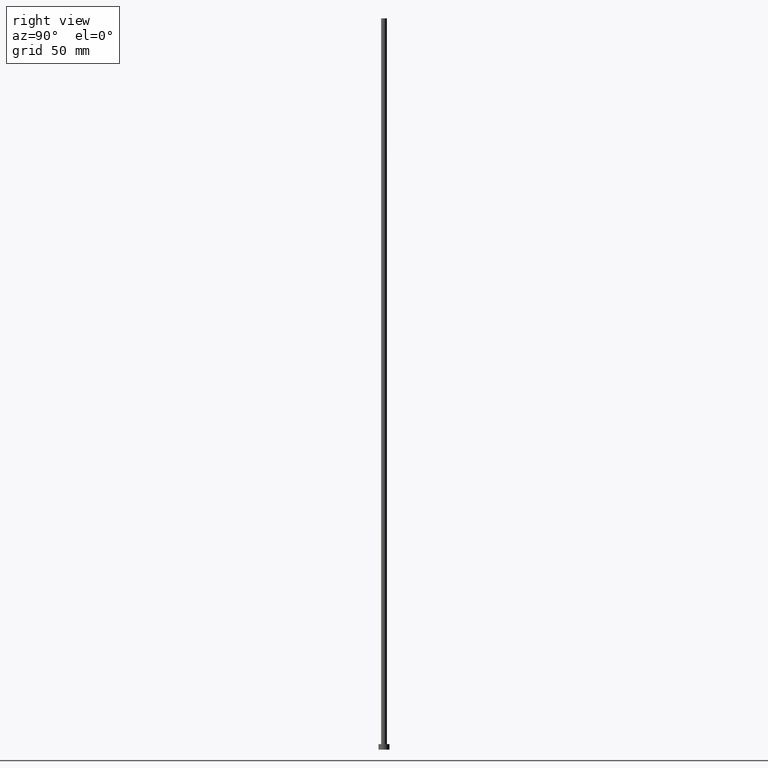
[diagram: clean part render]
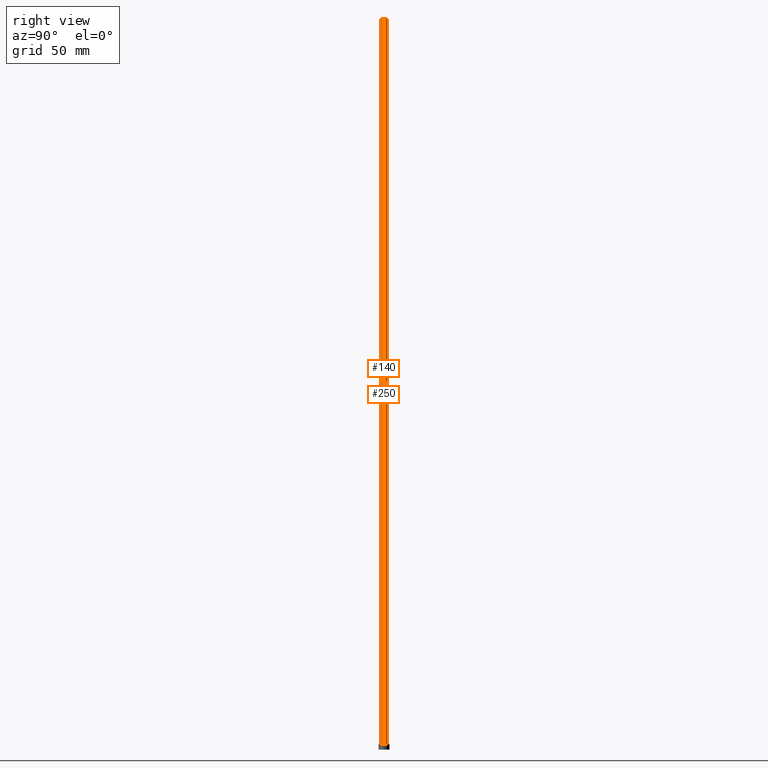
[diagram: same view with one multi-face feature highlighted, each face labeled with its STEP entity id]
A machine part, right view. The highlighted faces form ONE feature: a constant-radius fillet chain: 2 tangent blend faces with common blend radius 1.6 mm. The faces share edges in the B-rep.
Their STEP definitions:
[1] entity #250 (Cylinder):
#10 = EDGE_CURVE ( 'NONE', #119, #154, #201, .T. ) ;
#11 = EDGE_LOOP ( 'NONE', ( #132, #174, #151, #172 ) ) ;
#17 = DIRECTION ( 'NONE',  ( -0.000000000000000000, -0.000000000000000000, -1.000000000000000000 ) ) ;
#21 = CARTESIAN_POINT ( 'NONE',  ( -1.600000000000000089, 0.000000000000000000, 400.0000000000000000 ) ) ;
#33 = CARTESIAN_POINT ( 'NONE',  ( -1.600000000000000089, 0.000000000000000000, 400.0000000000000000 ) ) ;
#40 = CARTESIAN_POINT ( 'NONE',  ( 1.600000000000000089, 1.959434878635765230E-16, 400.0000000000000000 ) ) ;
#45 = DIRECTION ( 'NONE',  ( 1.000000000000000000, 0.000000000000000000, 0.000000000000000000 ) ) ;
#55 = EDGE_CURVE ( 'NONE', #240, #154, #228, .T. ) ;
#66 = EDGE_CURVE ( 'NONE', #193, #240, #224, .T. ) ;
#68 = AXIS2_PLACEMENT_3D ( 'NONE', #249, #186, #73 ) ;
#73 = DIRECTION ( 'NONE',  ( -1.000000000000000000, 0.000000000000000000, 0.000000000000000000 ) ) ;
#88 = CYLINDRICAL_SURFACE ( 'NONE', #68, 1.600000000000000089 ) ;
#90 = VECTOR ( 'NONE', #17, 1000.000000000000000 ) ;
#103 = AXIS2_PLACEMENT_3D ( 'NONE', #183, #107, #45 ) ;
#107 = DIRECTION ( 'NONE',  ( 0.000000000000000000, 0.000000000000000000, 1.000000000000000000 ) ) ;
#119 = VERTEX_POINT ( 'NONE', #21 ) ;
#121 = DIRECTION ( 'NONE',  ( 1.000000000000000000, 0.000000000000000000, 0.000000000000000000 ) ) ;
#132 = ORIENTED_EDGE ( 'NONE', *, *, #212, .F. ) ;
#138 = CARTESIAN_POINT ( 'NONE',  ( 0.000000000000000000, 0.000000000000000000, 3.000000000000000000 ) ) ;
#151 = ORIENTED_EDGE ( 'NONE', *, *, #55, .T. ) ;
#154 = VERTEX_POINT ( 'NONE', #170 ) ;
#170 = CARTESIAN_POINT ( 'NONE',  ( -1.600000000000000089, 0.000000000000000000, 3.000000000000000000 ) ) ;
#172 = ORIENTED_EDGE ( 'NONE', *, *, #10, .F. ) ;
#174 = ORIENTED_EDGE ( 'NONE', *, *, #66, .T. ) ;
#178 = VECTOR ( 'NONE', #244, 1000.000000000000000 ) ;
#183 = CARTESIAN_POINT ( 'NONE',  ( 0.000000000000000000, 0.000000000000000000, 400.0000000000000000 ) ) ;
#186 = DIRECTION ( 'NONE',  ( -0.000000000000000000, -0.000000000000000000, -1.000000000000000000 ) ) ;
#193 = VERTEX_POINT ( 'NONE', #40 ) ;
#201 = LINE ( 'NONE', #33, #178 ) ;
#202 = CARTESIAN_POINT ( 'NONE',  ( 1.600000000000000089, 1.959434878635765230E-16, 400.0000000000000000 ) ) ;
#203 = CIRCLE ( 'NONE', #103, 1.600000000000000089 ) ;
#211 = CARTESIAN_POINT ( 'NONE',  ( 1.600000000000000089, 1.959434878635765230E-16, 3.000000000000000000 ) ) ;
#212 = EDGE_CURVE ( 'NONE', #193, #119, #203, .T. ) ;
#224 = LINE ( 'NONE', #202, #90 ) ;
#227 = DIRECTION ( 'NONE',  ( 0.000000000000000000, 0.000000000000000000, 1.000000000000000000 ) ) ;
#228 = CIRCLE ( 'NONE', #255, 1.600000000000000089 ) ;
#240 = VERTEX_POINT ( 'NONE', #211 ) ;
#244 = DIRECTION ( 'NONE',  ( -0.000000000000000000, -0.000000000000000000, -1.000000000000000000 ) ) ;
#249 = CARTESIAN_POINT ( 'NONE',  ( 0.000000000000000000, 0.000000000000000000, 400.0000000000000000 ) ) ;
#250 = ADVANCED_FACE ( 'NONE', ( #253 ), #88, .T. ) ;
#253 = FACE_OUTER_BOUND ( 'NONE', #11, .T. ) ;
#255 = AXIS2_PLACEMENT_3D ( 'NONE', #138, #227, #121 ) ;
[2] entity #140 (Cylinder):
#10 = EDGE_CURVE ( 'NONE', #119, #154, #201, .T. ) ;
#13 = CARTESIAN_POINT ( 'NONE',  ( 0.000000000000000000, 0.000000000000000000, 3.000000000000000000 ) ) ;
#17 = DIRECTION ( 'NONE',  ( -0.000000000000000000, -0.000000000000000000, -1.000000000000000000 ) ) ;
#19 = DIRECTION ( 'NONE',  ( 1.000000000000000000, 0.000000000000000000, 0.000000000000000000 ) ) ;
#21 = CARTESIAN_POINT ( 'NONE',  ( -1.600000000000000089, 0.000000000000000000, 400.0000000000000000 ) ) ;
#29 = CIRCLE ( 'NONE', #245, 1.600000000000000089 ) ;
#33 = CARTESIAN_POINT ( 'NONE',  ( -1.600000000000000089, 0.000000000000000000, 400.0000000000000000 ) ) ;
#34 = CIRCLE ( 'NONE', #241, 1.600000000000000089 ) ;
#40 = CARTESIAN_POINT ( 'NONE',  ( 1.600000000000000089, 1.959434878635765230E-16, 400.0000000000000000 ) ) ;
#53 = AXIS2_PLACEMENT_3D ( 'NONE', #112, #164, #91 ) ;
#64 = ORIENTED_EDGE ( 'NONE', *, *, #101, .T. ) ;
#66 = EDGE_CURVE ( 'NONE', #193, #240, #224, .T. ) ;
#67 = EDGE_LOOP ( 'NONE', ( #79, #84, #219, #64 ) ) ;
#79 = ORIENTED_EDGE ( 'NONE', *, *, #66, .F. ) ;
#84 = ORIENTED_EDGE ( 'NONE', *, *, #223, .F. ) ;
#90 = VECTOR ( 'NONE', #17, 1000.000000000000000 ) ;
#91 = DIRECTION ( 'NONE',  ( -1.000000000000000000, 0.000000000000000000, 0.000000000000000000 ) ) ;
#101 = EDGE_CURVE ( 'NONE', #154, #240, #34, .T. ) ;
#112 = CARTESIAN_POINT ( 'NONE',  ( 0.000000000000000000, 0.000000000000000000, 400.0000000000000000 ) ) ;
#119 = VERTEX_POINT ( 'NONE', #21 ) ;
#124 = FACE_OUTER_BOUND ( 'NONE', #67, .T. ) ;
#127 = CARTESIAN_POINT ( 'NONE',  ( 0.000000000000000000, 0.000000000000000000, 400.0000000000000000 ) ) ;
#140 = ADVANCED_FACE ( 'NONE', ( #124 ), #187, .T. ) ;
#154 = VERTEX_POINT ( 'NONE', #170 ) ;
#158 = DIRECTION ( 'NONE',  ( 0.000000000000000000, 0.000000000000000000, 1.000000000000000000 ) ) ;
#162 = DIRECTION ( 'NONE',  ( 0.000000000000000000, 0.000000000000000000, 1.000000000000000000 ) ) ;
#164 = DIRECTION ( 'NONE',  ( -0.000000000000000000, -0.000000000000000000, -1.000000000000000000 ) ) ;
#170 = CARTESIAN_POINT ( 'NONE',  ( -1.600000000000000089, 0.000000000000000000, 3.000000000000000000 ) ) ;
#178 = VECTOR ( 'NONE', #244, 1000.000000000000000 ) ;
#187 = CYLINDRICAL_SURFACE ( 'NONE', #53, 1.600000000000000089 ) ;
#193 = VERTEX_POINT ( 'NONE', #40 ) ;
#199 = DIRECTION ( 'NONE',  ( 1.000000000000000000, 0.000000000000000000, 0.000000000000000000 ) ) ;
#201 = LINE ( 'NONE', #33, #178 ) ;
#202 = CARTESIAN_POINT ( 'NONE',  ( 1.600000000000000089, 1.959434878635765230E-16, 400.0000000000000000 ) ) ;
#211 = CARTESIAN_POINT ( 'NONE',  ( 1.600000000000000089, 1.959434878635765230E-16, 3.000000000000000000 ) ) ;
#219 = ORIENTED_EDGE ( 'NONE', *, *, #10, .T. ) ;
#223 = EDGE_CURVE ( 'NONE', #119, #193, #29, .T. ) ;
#224 = LINE ( 'NONE', #202, #90 ) ;
#240 = VERTEX_POINT ( 'NONE', #211 ) ;
#241 = AXIS2_PLACEMENT_3D ( 'NONE', #13, #158, #199 ) ;
#244 = DIRECTION ( 'NONE',  ( -0.000000000000000000, -0.000000000000000000, -1.000000000000000000 ) ) ;
#245 = AXIS2_PLACEMENT_3D ( 'NONE', #127, #162, #19 ) ;